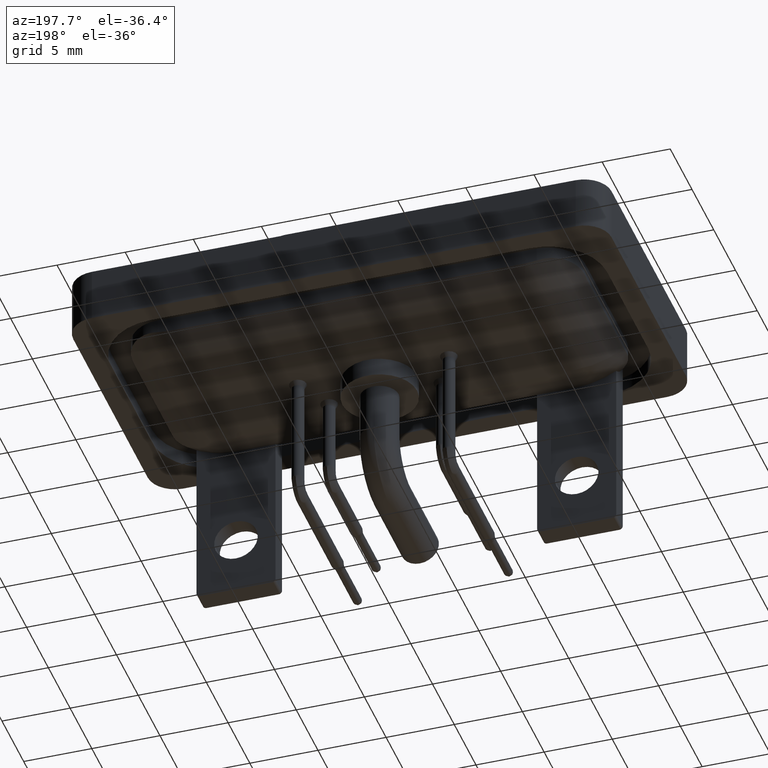
[diagram: clean part render]
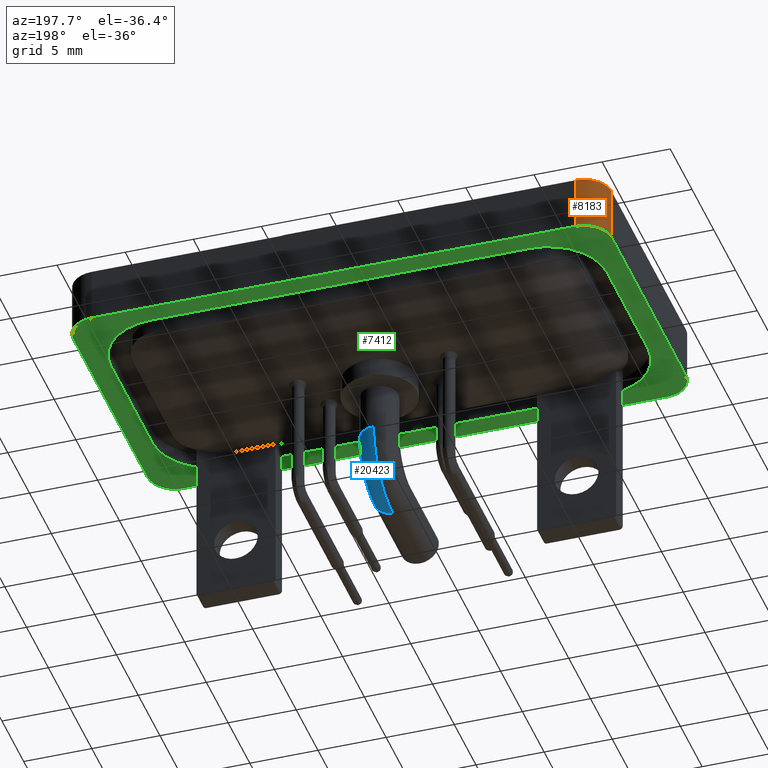
[diagram: same view with three faces highlighted in distinct colors, each labeled with its STEP entity id]
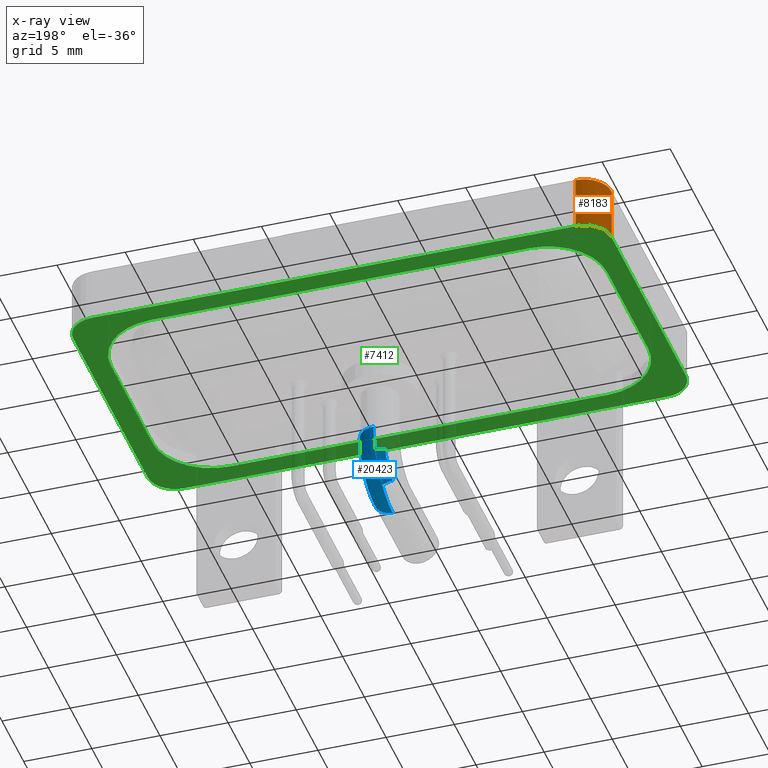
[diagram: x-ray of the same camera — body ghosted, the three highlighted faces saturated]
A machine part, auxiliary view with three faces highlighted in distinct colors.
The next image is the same camera in x-ray (body ghosted, the three faces saturated) — at least one of them is partly hidden behind the body in this view.
Their STEP definitions:

[orange] entity #8183 — the highlighted cylindrical surface (edge-blend (fillet) strip) has radius 2 mm, axis along (0, 0, 1).
#335 = DIRECTION ( 'NONE',  ( 0.000000000000000000, 0.000000000000000000, 1.000000000000000000 ) ) ;
#744 = CARTESIAN_POINT ( 'NONE',  ( -7.249999999999999112, 8.550000000000000711, -3.600000000000000089 ) ) ;
#757 = CARTESIAN_POINT ( 'NONE',  ( -7.249999999999999112, 8.550000000000000711, -3.600000000000000089 ) ) ;
#1214 = DIRECTION ( 'NONE',  ( 0.000000000000000000, 0.000000000000000000, 1.000000000000000000 ) ) ;
#1483 = EDGE_CURVE ( 'NONE', #5882, #18258, #5629, .T. ) ;
#2265 = DIRECTION ( 'NONE',  ( 1.000000000000000000, 0.000000000000000000, 0.000000000000000000 ) ) ;
#2619 = CARTESIAN_POINT ( 'NONE',  ( -7.249999999999999112, 8.550000000000000711, 0.4000000000000000222 ) ) ;
#3295 = EDGE_LOOP ( 'NONE', ( #7770, #12781, #13443, #6025 ) ) ;
#3512 = VERTEX_POINT ( 'NONE', #744 ) ;
#4728 = VECTOR ( 'NONE', #335, 1000.000000000000000 ) ;
#4743 = CARTESIAN_POINT ( 'NONE',  ( -5.249999999999997335, 10.55000000000000071, -3.600000000000000089 ) ) ;
#5629 = CIRCLE ( 'NONE', #17660, 2.000000000000000888 ) ;
#5782 = EDGE_CURVE ( 'NONE', #3512, #18258, #10072, .T. ) ;
#5882 = VERTEX_POINT ( 'NONE', #13322 ) ;
#6025 = ORIENTED_EDGE ( 'NONE', *, *, #7011, .T. ) ;
#6670 = FACE_OUTER_BOUND ( 'NONE', #3295, .T. ) ;
#7011 = EDGE_CURVE ( 'NONE', #10912, #3512, #17088, .T. ) ;
#7032 = DIRECTION ( 'NONE',  ( 0.000000000000000000, 0.000000000000000000, 1.000000000000000000 ) ) ;
#7770 = ORIENTED_EDGE ( 'NONE', *, *, #5782, .T. ) ;
#8183 = ADVANCED_FACE ( 'NONE', ( #6670 ), #14638, .T. ) ;
#9100 = AXIS2_PLACEMENT_3D ( 'NONE', #16494, #13156, #2265 ) ;
#9137 = DIRECTION ( 'NONE',  ( 0.000000000000000000, 0.000000000000000000, 1.000000000000000000 ) ) ;
#9371 = CARTESIAN_POINT ( 'NONE',  ( -5.249999999999997335, 8.550000000000000711, -3.600000000000000089 ) ) ;
#10072 = LINE ( 'NONE', #757, #13070 ) ;
#10833 = DIRECTION ( 'NONE',  ( 1.000000000000000000, 0.000000000000000000, 0.000000000000000000 ) ) ;
#10912 = VERTEX_POINT ( 'NONE', #16233 ) ;
#12781 = ORIENTED_EDGE ( 'NONE', *, *, #1483, .F. ) ;
#13070 = VECTOR ( 'NONE', #7032, 1000.000000000000000 ) ;
#13156 = DIRECTION ( 'NONE',  ( 0.000000000000000000, 0.000000000000000000, 1.000000000000000000 ) ) ;
#13322 = CARTESIAN_POINT ( 'NONE',  ( -5.249999999999997335, 10.55000000000000071, 0.4000000000000000222 ) ) ;
#13426 = EDGE_CURVE ( 'NONE', #10912, #5882, #19087, .T. ) ;
#13443 = ORIENTED_EDGE ( 'NONE', *, *, #13426, .F. ) ;
#14638 = CYLINDRICAL_SURFACE ( 'NONE', #9100, 2.000000000000000888 ) ;
#16233 = CARTESIAN_POINT ( 'NONE',  ( -5.249999999999997335, 10.55000000000000071, -3.600000000000000089 ) ) ;
#16494 = CARTESIAN_POINT ( 'NONE',  ( -5.249999999999997335, 8.550000000000000711, -3.600000000000000089 ) ) ;
#17088 = CIRCLE ( 'NONE', #18777, 2.000000000000000888 ) ;
#17660 = AXIS2_PLACEMENT_3D ( 'NONE', #20368, #9137, #20583 ) ;
#18258 = VERTEX_POINT ( 'NONE', #2619 ) ;
#18777 = AXIS2_PLACEMENT_3D ( 'NONE', #9371, #1214, #10833 ) ;
#19087 = LINE ( 'NONE', #4743, #4728 ) ;
#20368 = CARTESIAN_POINT ( 'NONE',  ( -5.249999999999997335, 8.550000000000000711, 0.4000000000000000222 ) ) ;
#20583 = DIRECTION ( 'NONE',  ( 1.000000000000000000, 0.000000000000000000, 0.000000000000000000 ) ) ;

[blue] entity #20423 — the highlighted toroidal blend (fillet) surface has major radius 3 mm and minor (blend) radius 1.4 mm.
#2 = CIRCLE ( 'NONE', #14721, 1.600000000000000089 ) ;
#53 = DIRECTION ( 'NONE',  ( 0.000000000000000000, 0.000000000000000000, -1.000000000000000000 ) ) ;
#960 = VERTEX_POINT ( 'NONE', #4160 ) ;
#1105 = CARTESIAN_POINT ( 'NONE',  ( 0.000000000000000000, -2.999999999999999556, -7.900000000000000355 ) ) ;
#1955 = DIRECTION ( 'NONE',  ( -1.000000000000000000, -0.000000000000000000, 0.000000000000000000 ) ) ;
#2905 = DIRECTION ( 'NONE',  ( 0.000000000000000000, 0.000000000000000000, 1.000000000000000000 ) ) ;
#4094 = EDGE_CURVE ( 'NONE', #19057, #13692, #7796, .T. ) ;
#4160 = CARTESIAN_POINT ( 'NONE',  ( 1.714505518806294145E-16, -2.999999999999999556, -5.100000000000000533 ) ) ;
#5103 = CARTESIAN_POINT ( 'NONE',  ( 1.714505518806294391E-16, -1.399999999999999911, -3.499999999999999556 ) ) ;
#5622 = EDGE_CURVE ( 'NONE', #8255, #960, #2, .T. ) ;
#5969 = EDGE_CURVE ( 'NONE', #8510, #960, #19754, .T. ) ;
#6038 = DIRECTION ( 'NONE',  ( 0.000000000000000000, 0.000000000000000000, -1.000000000000000000 ) ) ;
#7348 = CARTESIAN_POINT ( 'NONE',  ( 0.000000000000000000, -3.000000000000000000, -3.499999999999999556 ) ) ;
#7796 = CIRCLE ( 'NONE', #11131, 1.399999999999999911 ) ;
#8097 = AXIS2_PLACEMENT_3D ( 'NONE', #16285, #1955, #8330 ) ;
#8255 = VERTEX_POINT ( 'NONE', #5103 ) ;
#8330 = DIRECTION ( 'NONE',  ( 0.000000000000000000, 0.000000000000000000, 1.000000000000000000 ) ) ;
#8510 = VERTEX_POINT ( 'NONE', #1105 ) ;
#8654 = EDGE_CURVE ( 'NONE', #13692, #8255, #20480, .T. ) ;
#9047 = DIRECTION ( 'NONE',  ( -1.000000000000000000, -0.000000000000000000, 0.000000000000000000 ) ) ;
#9764 = CIRCLE ( 'NONE', #8097, 4.400000000000000355 ) ;
#10939 = CARTESIAN_POINT ( 'NONE',  ( 0.000000000000000000, 0.000000000000000000, -3.499999999999999556 ) ) ;
#11131 = AXIS2_PLACEMENT_3D ( 'NONE', #20401, #6038, #19251 ) ;
#11800 = EDGE_LOOP ( 'NONE', ( #15274, #19412, #16566, #14376, #20728 ) ) ;
#12162 = CARTESIAN_POINT ( 'NONE',  ( 0.000000000000000000, -2.999999999999999556, -6.500000000000000888 ) ) ;
#13692 = VERTEX_POINT ( 'NONE', #13821 ) ;
#13821 = CARTESIAN_POINT ( 'NONE',  ( 1.399999999999999911, 1.714505518806295131E-16, -3.499999999999999556 ) ) ;
#14376 = ORIENTED_EDGE ( 'NONE', *, *, #5622, .T. ) ;
#14721 = AXIS2_PLACEMENT_3D ( 'NONE', #20381, #9047, #2905 ) ;
#14748 = AXIS2_PLACEMENT_3D ( 'NONE', #12162, #15399, #15608 ) ;
#15274 = ORIENTED_EDGE ( 'NONE', *, *, #19908, .F. ) ;
#15306 = DIRECTION ( 'NONE',  ( 0.000000000000000000, 0.000000000000000000, 1.000000000000000000 ) ) ;
#15399 = DIRECTION ( 'NONE',  ( 0.000000000000000000, -1.000000000000000000, -1.445602896647339163E-16 ) ) ;
#15474 = TOROIDAL_SURFACE ( 'NONE', #15819, 3.000000000000000000, 1.399999999999999911 ) ;
#15608 = DIRECTION ( 'NONE',  ( -1.000000000000000000, 0.000000000000000000, 0.000000000000000000 ) ) ;
#15819 = AXIS2_PLACEMENT_3D ( 'NONE', #7348, #18356, #15306 ) ;
#16285 = CARTESIAN_POINT ( 'NONE',  ( 0.000000000000000000, -3.000000000000000000, -3.499999999999999556 ) ) ;
#16566 = ORIENTED_EDGE ( 'NONE', *, *, #8654, .T. ) ;
#16872 = FACE_OUTER_BOUND ( 'NONE', #11800, .T. ) ;
#17193 = CARTESIAN_POINT ( 'NONE',  ( 0.000000000000000000, 1.400000000000000133, -3.499999999999999556 ) ) ;
#18356 = DIRECTION ( 'NONE',  ( -1.000000000000000000, -0.000000000000000000, 0.000000000000000000 ) ) ;
#18796 = AXIS2_PLACEMENT_3D ( 'NONE', #10939, #53, #19229 ) ;
#19057 = VERTEX_POINT ( 'NONE', #17193 ) ;
#19229 = DIRECTION ( 'NONE',  ( -1.000000000000000000, 0.000000000000000000, 0.000000000000000000 ) ) ;
#19251 = DIRECTION ( 'NONE',  ( -1.000000000000000000, 0.000000000000000000, 0.000000000000000000 ) ) ;
#19412 = ORIENTED_EDGE ( 'NONE', *, *, #4094, .T. ) ;
#19754 = CIRCLE ( 'NONE', #14748, 1.399999999999999911 ) ;
#19908 = EDGE_CURVE ( 'NONE', #19057, #8510, #9764, .T. ) ;
#20381 = CARTESIAN_POINT ( 'NONE',  ( 1.714505518806294391E-16, -3.000000000000000000, -3.499999999999999556 ) ) ;
#20401 = CARTESIAN_POINT ( 'NONE',  ( 0.000000000000000000, 0.000000000000000000, -3.499999999999999556 ) ) ;
#20423 = ADVANCED_FACE ( 'NONE', ( #16872 ), #15474, .T. ) ;
#20480 = CIRCLE ( 'NONE', #18796, 1.399999999999999911 ) ;
#20728 = ORIENTED_EDGE ( 'NONE', *, *, #5969, .F. ) ;

[green] entity #7412 — the highlighted planar face has unit normal (0, 0, 1).
#175 = VERTEX_POINT ( 'NONE', #12255 ) ;
#463 = DIRECTION ( 'NONE',  ( 0.000000000000000000, 0.000000000000000000, -1.000000000000000000 ) ) ;
#574 = VERTEX_POINT ( 'NONE', #6803 ) ;
#643 = EDGE_CURVE ( 'NONE', #18028, #3594, #4076, .T. ) ;
#744 = CARTESIAN_POINT ( 'NONE',  ( -7.249999999999999112, 8.550000000000000711, -3.600000000000000089 ) ) ;
#775 = DIRECTION ( 'NONE',  ( 0.000000000000000000, 0.000000000000000000, 1.000000000000000000 ) ) ;
#1082 = AXIS2_PLACEMENT_3D ( 'NONE', #13445, #2351, #17089 ) ;
#1124 = CARTESIAN_POINT ( 'NONE',  ( 30.70000000000000639, -4.749999999999998224, -3.600000000000000089 ) ) ;
#1188 = EDGE_CURVE ( 'NONE', #11085, #15607, #3532, .T. ) ;
#1214 = DIRECTION ( 'NONE',  ( 0.000000000000000000, 0.000000000000000000, 1.000000000000000000 ) ) ;
#1691 = DIRECTION ( 'NONE',  ( 6.391086490440866478E-16, 1.000000000000000000, 0.000000000000000000 ) ) ;
#1780 = EDGE_CURVE ( 'NONE', #8034, #11085, #5300, .T. ) ;
#1839 = VECTOR ( 'NONE', #6132, 1000.000000000000000 ) ;
#1914 = EDGE_CURVE ( 'NONE', #3594, #3374, #7972, .T. ) ;
#2107 = CARTESIAN_POINT ( 'NONE',  ( -5.249999999999997335, -10.55000000000000071, -3.600000000000000089 ) ) ;
#2172 = LINE ( 'NONE', #2479, #19047 ) ;
#2238 = CARTESIAN_POINT ( 'NONE',  ( 30.25000000000000711, -8.550000000000000711, -3.600000000000000089 ) ) ;
#2347 = PLANE ( 'NONE',  #11118 ) ;
#2351 = DIRECTION ( 'NONE',  ( 0.000000000000000000, 0.000000000000000000, 1.000000000000000000 ) ) ;
#2376 = DIRECTION ( 'NONE',  ( -0.000000000000000000, -1.000000000000000000, -0.000000000000000000 ) ) ;
#2479 = CARTESIAN_POINT ( 'NONE',  ( -7.249999999999999112, -8.550000000000000711, -3.600000000000000089 ) ) ;
#2549 = DIRECTION ( 'NONE',  ( 0.000000000000000000, 0.000000000000000000, -1.000000000000000000 ) ) ;
#2666 = AXIS2_PLACEMENT_3D ( 'NONE', #15303, #2549, #16665 ) ;
#2809 = ORIENTED_EDGE ( 'NONE', *, *, #20313, .F. ) ;
#2983 = EDGE_LOOP ( 'NONE', ( #17726, #7637, #9329, #4325, #6318, #17310, #16739, #16313 ) ) ;
#3098 = CIRCLE ( 'NONE', #3755, 2.000000000000000888 ) ;
#3374 = VERTEX_POINT ( 'NONE', #19297 ) ;
#3512 = VERTEX_POINT ( 'NONE', #744 ) ;
#3532 = LINE ( 'NONE', #9788, #11321 ) ;
#3594 = VERTEX_POINT ( 'NONE', #10763 ) ;
#3610 = DIRECTION ( 'NONE',  ( -1.000000000000000000, 0.000000000000000000, 0.000000000000000000 ) ) ;
#3630 = CARTESIAN_POINT ( 'NONE',  ( -5.249999999999997335, -8.550000000000000711, -3.600000000000000089 ) ) ;
#3647 = CARTESIAN_POINT ( 'NONE',  ( -1.399999999999999245, -4.749999999999999112, -3.600000000000000089 ) ) ;
#3655 = CARTESIAN_POINT ( 'NONE',  ( -5.699999999999993072, 4.750000000000001776, -3.600000000000000089 ) ) ;
#3755 = AXIS2_PLACEMENT_3D ( 'NONE', #3630, #18070, #17753 ) ;
#4035 = LINE ( 'NONE', #18586, #18079 ) ;
#4076 = LINE ( 'NONE', #5737, #14318 ) ;
#4186 = ORIENTED_EDGE ( 'NONE', *, *, #11717, .F. ) ;
#4298 = CIRCLE ( 'NONE', #16000, 4.299999999999999822 ) ;
#4325 = ORIENTED_EDGE ( 'NONE', *, *, #11916, .F. ) ;
#4991 = DIRECTION ( 'NONE',  ( 0.000000000000000000, 1.000000000000000000, 0.000000000000000000 ) ) ;
#5099 = CARTESIAN_POINT ( 'NONE',  ( 32.25000000000000711, 8.550000000000000711, -3.600000000000000089 ) ) ;
#5173 = CARTESIAN_POINT ( 'NONE',  ( 30.25000000000000711, 10.55000000000000071, -3.600000000000000089 ) ) ;
#5300 = CIRCLE ( 'NONE', #9979, 2.000000000000001776 ) ;
#5737 = CARTESIAN_POINT ( 'NONE',  ( -1.399999999999998579, 9.049999999999993605, -3.600000000000000089 ) ) ;
#6132 = DIRECTION ( 'NONE',  ( 1.000000000000000000, -0.000000000000000000, -0.000000000000000000 ) ) ;
#6301 = AXIS2_PLACEMENT_3D ( 'NONE', #14811, #463, #13228 ) ;
#6318 = ORIENTED_EDGE ( 'NONE', *, *, #6614, .F. ) ;
#6614 = EDGE_CURVE ( 'NONE', #3374, #8003, #18948, .T. ) ;
#6803 = CARTESIAN_POINT ( 'NONE',  ( 30.25000000000000711, 10.55000000000000071, -3.600000000000000089 ) ) ;
#6934 = CARTESIAN_POINT ( 'NONE',  ( -1.399999999999998579, -9.049999999999998934, -3.600000000000000089 ) ) ;
#7011 = EDGE_CURVE ( 'NONE', #10912, #3512, #17088, .T. ) ;
#7412 = ADVANCED_FACE ( 'NONE', ( #7772, #8816 ), #2347, .F. ) ;
#7637 = ORIENTED_EDGE ( 'NONE', *, *, #11497, .F. ) ;
#7772 = FACE_BOUND ( 'NONE', #2983, .T. ) ;
#7814 = VECTOR ( 'NONE', #1691, 1000.000000000000000 ) ;
#7972 = CIRCLE ( 'NONE', #6301, 4.299999999999998046 ) ;
#8003 = VERTEX_POINT ( 'NONE', #1124 ) ;
#8034 = VERTEX_POINT ( 'NONE', #16823 ) ;
#8040 = DIRECTION ( 'NONE',  ( 0.000000000000000000, 0.000000000000000000, -1.000000000000000000 ) ) ;
#8251 = CARTESIAN_POINT ( 'NONE',  ( -5.700000000000000178, -4.749999999999999112, -3.600000000000000089 ) ) ;
#8311 = LINE ( 'NONE', #5173, #11471 ) ;
#8419 = CARTESIAN_POINT ( 'NONE',  ( -1.399999999999999245, 4.750000000000000888, -3.600000000000000089 ) ) ;
#8749 = EDGE_CURVE ( 'NONE', #12139, #18028, #10412, .T. ) ;
#8816 = FACE_OUTER_BOUND ( 'NONE', #12113, .T. ) ;
#8830 = DIRECTION ( 'NONE',  ( -1.000000000000000000, 6.240012503513693999E-17, 0.000000000000000000 ) ) ;
#8967 = EDGE_CURVE ( 'NONE', #15607, #574, #16455, .T. ) ;
#9270 = CARTESIAN_POINT ( 'NONE',  ( 30.25000000000000711, -10.55000000000000071, -3.600000000000000089 ) ) ;
#9329 = ORIENTED_EDGE ( 'NONE', *, *, #12881, .F. ) ;
#9371 = CARTESIAN_POINT ( 'NONE',  ( -5.249999999999997335, 8.550000000000000711, -3.600000000000000089 ) ) ;
#9740 = LINE ( 'NONE', #11217, #7814 ) ;
#9788 = CARTESIAN_POINT ( 'NONE',  ( 32.25000000000000711, -8.550000000000000711, -3.600000000000000089 ) ) ;
#9979 = AXIS2_PLACEMENT_3D ( 'NONE', #2238, #19632, #14910 ) ;
#10412 = CIRCLE ( 'NONE', #13772, 4.299999999999993605 ) ;
#10556 = VERTEX_POINT ( 'NONE', #6934 ) ;
#10763 = CARTESIAN_POINT ( 'NONE',  ( 26.40000000000000213, 9.049999999999998934, -3.600000000000000089 ) ) ;
#10833 = DIRECTION ( 'NONE',  ( 1.000000000000000000, 0.000000000000000000, 0.000000000000000000 ) ) ;
#10861 = CARTESIAN_POINT ( 'NONE',  ( 30.70000000000000284, 4.750000000000000888, -3.600000000000000089 ) ) ;
#10912 = VERTEX_POINT ( 'NONE', #16233 ) ;
#11085 = VERTEX_POINT ( 'NONE', #13497 ) ;
#11118 = AXIS2_PLACEMENT_3D ( 'NONE', #15110, #775, #20142 ) ;
#11217 = CARTESIAN_POINT ( 'NONE',  ( -5.700000000000000178, -4.749999999999999112, -3.600000000000000089 ) ) ;
#11283 = DIRECTION ( 'NONE',  ( -1.000000000000000000, 0.000000000000000000, 0.000000000000000000 ) ) ;
#11321 = VECTOR ( 'NONE', #4991, 1000.000000000000000 ) ;
#11471 = VECTOR ( 'NONE', #3610, 1000.000000000000000 ) ;
#11497 = EDGE_CURVE ( 'NONE', #10556, #12037, #4298, .T. ) ;
#11664 = DIRECTION ( 'NONE',  ( 0.000000000000000000, 0.000000000000000000, -1.000000000000000000 ) ) ;
#11717 = EDGE_CURVE ( 'NONE', #3512, #18775, #2172, .T. ) ;
#11737 = ORIENTED_EDGE ( 'NONE', *, *, #18813, .F. ) ;
#11916 = EDGE_CURVE ( 'NONE', #8003, #175, #19378, .T. ) ;
#12037 = VERTEX_POINT ( 'NONE', #8251 ) ;
#12113 = EDGE_LOOP ( 'NONE', ( #20292, #11737, #17877, #4186, #13771, #2809, #14296, #17417 ) ) ;
#12139 = VERTEX_POINT ( 'NONE', #3655 ) ;
#12255 = CARTESIAN_POINT ( 'NONE',  ( 26.40000000000000213, -9.050000000000000711, -3.600000000000000089 ) ) ;
#12855 = CARTESIAN_POINT ( 'NONE',  ( -1.399999999999998579, 9.049999999999993605, -3.600000000000000089 ) ) ;
#12881 = EDGE_CURVE ( 'NONE', #175, #10556, #4035, .T. ) ;
#13135 = DIRECTION ( 'NONE',  ( -1.000000000000000000, 0.000000000000000000, 0.000000000000000000 ) ) ;
#13228 = DIRECTION ( 'NONE',  ( -1.000000000000000000, 0.000000000000000000, 0.000000000000000000 ) ) ;
#13445 = CARTESIAN_POINT ( 'NONE',  ( 30.25000000000000711, 8.550000000000000711, -3.600000000000000089 ) ) ;
#13497 = CARTESIAN_POINT ( 'NONE',  ( 32.25000000000000711, -8.550000000000000711, -3.600000000000000089 ) ) ;
#13771 = ORIENTED_EDGE ( 'NONE', *, *, #7011, .F. ) ;
#13772 = AXIS2_PLACEMENT_3D ( 'NONE', #8419, #11664, #13135 ) ;
#14296 = ORIENTED_EDGE ( 'NONE', *, *, #8967, .F. ) ;
#14318 = VECTOR ( 'NONE', #16831, 1000.000000000000000 ) ;
#14811 = CARTESIAN_POINT ( 'NONE',  ( 26.40000000000000213, 4.750000000000000888, -3.600000000000000089 ) ) ;
#14910 = DIRECTION ( 'NONE',  ( 1.000000000000000000, 0.000000000000000000, 0.000000000000000000 ) ) ;
#15110 = CARTESIAN_POINT ( 'NONE',  ( 30.25000000000000711, 8.550000000000000711, -3.600000000000000089 ) ) ;
#15303 = CARTESIAN_POINT ( 'NONE',  ( 26.40000000000000213, -4.749999999999999112, -3.600000000000000089 ) ) ;
#15607 = VERTEX_POINT ( 'NONE', #5099 ) ;
#16000 = AXIS2_PLACEMENT_3D ( 'NONE', #3647, #8040, #11283 ) ;
#16233 = CARTESIAN_POINT ( 'NONE',  ( -5.249999999999997335, 10.55000000000000071, -3.600000000000000089 ) ) ;
#16313 = ORIENTED_EDGE ( 'NONE', *, *, #8749, .F. ) ;
#16455 = CIRCLE ( 'NONE', #1082, 2.000000000000001776 ) ;
#16665 = DIRECTION ( 'NONE',  ( -1.000000000000000000, 0.000000000000000000, 0.000000000000000000 ) ) ;
#16739 = ORIENTED_EDGE ( 'NONE', *, *, #643, .F. ) ;
#16823 = CARTESIAN_POINT ( 'NONE',  ( 30.25000000000000711, -10.55000000000000071, -3.600000000000000089 ) ) ;
#16831 = DIRECTION ( 'NONE',  ( 1.000000000000000000, 1.872003751054108200E-16, 0.000000000000000000 ) ) ;
#17070 = VECTOR ( 'NONE', #20409, 1000.000000000000000 ) ;
#17088 = CIRCLE ( 'NONE', #18777, 2.000000000000000888 ) ;
#17089 = DIRECTION ( 'NONE',  ( 1.000000000000000000, 0.000000000000000000, 0.000000000000000000 ) ) ;
#17123 = CARTESIAN_POINT ( 'NONE',  ( -7.249999999999998224, -8.550000000000000711, -3.600000000000000089 ) ) ;
#17232 = LINE ( 'NONE', #9270, #1839 ) ;
#17310 = ORIENTED_EDGE ( 'NONE', *, *, #1914, .F. ) ;
#17417 = ORIENTED_EDGE ( 'NONE', *, *, #1188, .F. ) ;
#17726 = ORIENTED_EDGE ( 'NONE', *, *, #20709, .F. ) ;
#17753 = DIRECTION ( 'NONE',  ( -1.000000000000000000, 0.000000000000000000, 0.000000000000000000 ) ) ;
#17877 = ORIENTED_EDGE ( 'NONE', *, *, #19814, .F. ) ;
#18028 = VERTEX_POINT ( 'NONE', #12855 ) ;
#18070 = DIRECTION ( 'NONE',  ( 0.000000000000000000, 0.000000000000000000, 1.000000000000000000 ) ) ;
#18079 = VECTOR ( 'NONE', #8830, 1000.000000000000000 ) ;
#18586 = CARTESIAN_POINT ( 'NONE',  ( 26.40000000000000213, -9.050000000000000711, -3.600000000000000089 ) ) ;
#18775 = VERTEX_POINT ( 'NONE', #17123 ) ;
#18777 = AXIS2_PLACEMENT_3D ( 'NONE', #9371, #1214, #10833 ) ;
#18813 = EDGE_CURVE ( 'NONE', #20680, #8034, #17232, .T. ) ;
#18948 = LINE ( 'NONE', #10861, #17070 ) ;
#19047 = VECTOR ( 'NONE', #2376, 1000.000000000000000 ) ;
#19297 = CARTESIAN_POINT ( 'NONE',  ( 30.70000000000000284, 4.750000000000000888, -3.600000000000000089 ) ) ;
#19378 = CIRCLE ( 'NONE', #2666, 4.300000000000001599 ) ;
#19632 = DIRECTION ( 'NONE',  ( 0.000000000000000000, 0.000000000000000000, 1.000000000000000000 ) ) ;
#19814 = EDGE_CURVE ( 'NONE', #18775, #20680, #3098, .T. ) ;
#20142 = DIRECTION ( 'NONE',  ( 1.000000000000000000, 0.000000000000000000, -0.000000000000000000 ) ) ;
#20292 = ORIENTED_EDGE ( 'NONE', *, *, #1780, .F. ) ;
#20313 = EDGE_CURVE ( 'NONE', #574, #10912, #8311, .T. ) ;
#20409 = DIRECTION ( 'NONE',  ( 3.652049423109068320E-16, -1.000000000000000000, 0.000000000000000000 ) ) ;
#20680 = VERTEX_POINT ( 'NONE', #2107 ) ;
#20709 = EDGE_CURVE ( 'NONE', #12037, #12139, #9740, .T. ) ;